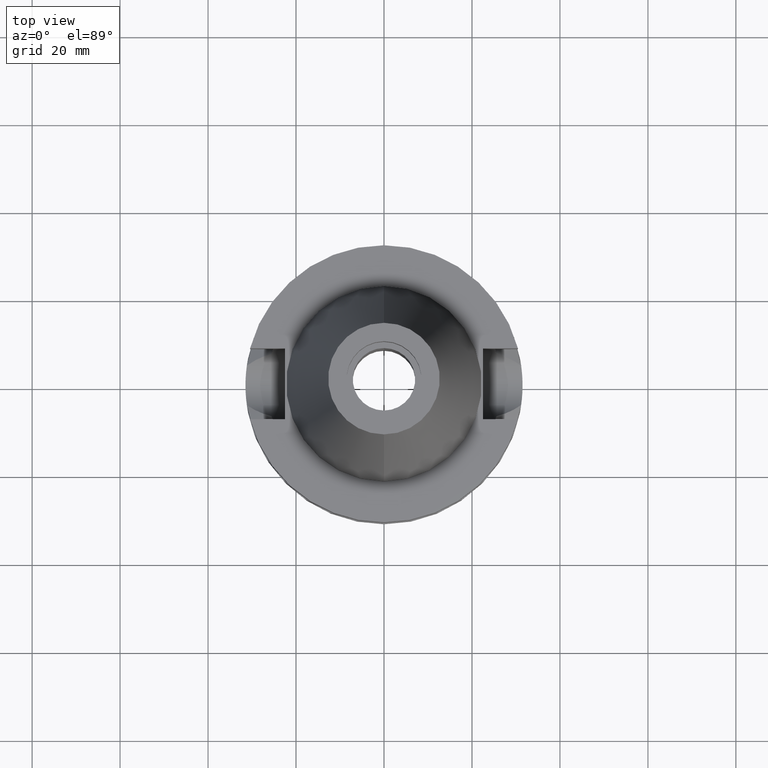
[diagram: clean part render]
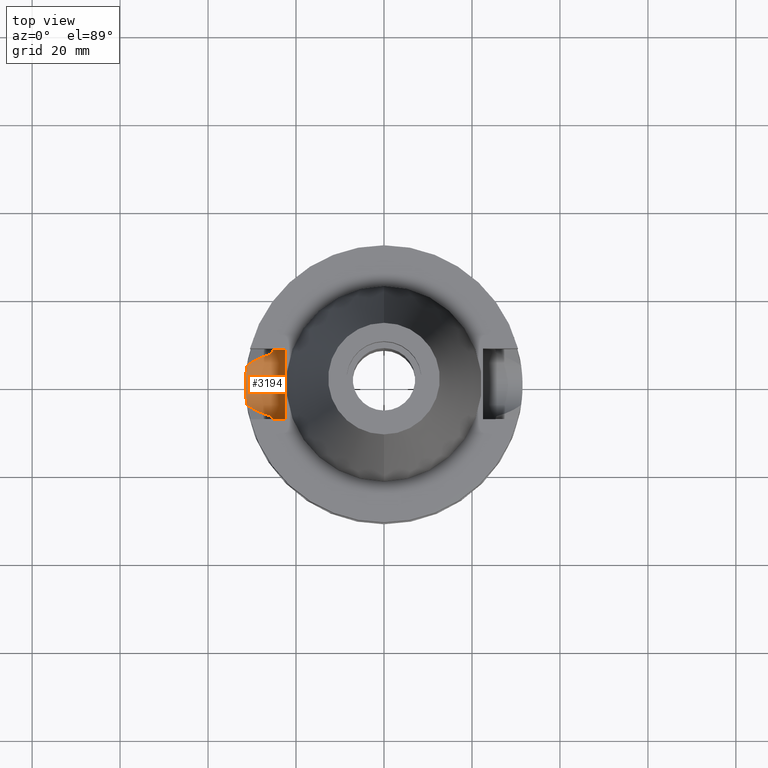
[diagram: same view with one face highlighted and labeled with its STEP entity id]
A machine part, top view. The second image highlights one B-rep face of the part: STEP entity #3194.
In plain terms, the highlighted cylindrical surface (edge-blend (fillet) strip) has radius 8.05 mm, axis along (-1, 0, 0).
Its self-contained STEP definition (entity closure, byte-faithful):
#177=CARTESIAN_POINT('',(-2.25E1,1.807578675541E-14,-1.495E1));
#178=DIRECTION('',(1.E0,0.E0,0.E0));
#179=DIRECTION('',(0.E0,-1.E0,1.919789379228E-14));
#180=AXIS2_PLACEMENT_3D('',#177,#178,#179);
#185=CARTESIAN_POINT('',(-2.25E1,1.807578675541E-14,-1.495E1));
#186=DIRECTION('',(1.E0,0.E0,0.E0));
#187=DIRECTION('',(0.E0,0.E0,-1.E0));
#188=AXIS2_PLACEMENT_3D('',#185,#186,#187);
#241=CARTESIAN_POINT('',(-2.553175183775E1,-7.097862220093E0,
-1.874774300139E1));
#242=CARTESIAN_POINT('',(-2.547268458767E1,-7.310333288722E0,
-1.835064125692E1));
#243=CARTESIAN_POINT('',(-2.536978932799E1,-7.660659993562E0,
-1.753821801328E1));
#244=CARTESIAN_POINT('',(-2.527039941148E1,-7.979415271044E0,
-1.625525072307E1));
#245=CARTESIAN_POINT('',(-2.524772266958E1,-8.05E0,-1.538871362011E1));
#246=CARTESIAN_POINT('',(-2.524772266958E1,-8.05E0,-1.495E1));
#361=CARTESIAN_POINT('',(-2.524772266958E1,8.05E0,-1.495E1));
#362=CARTESIAN_POINT('',(-2.524772266958E1,8.05E0,-1.538877714198E1));
#363=CARTESIAN_POINT('',(-2.527040623778E1,7.979394001993E0,-1.625539825028E1));
#364=CARTESIAN_POINT('',(-2.536980332822E1,7.660613844235E0,-1.753834283836E1));
#365=CARTESIAN_POINT('',(-2.547269200039E1,7.310306624394E0,-1.835069109171E1));
#366=CARTESIAN_POINT('',(-2.553175183775E1,7.097862220093E0,-1.874774300139E1));
#444=CARTESIAN_POINT('',(-3.117899877609E1,4.485536235554E0,-2.163449434733E1));
#445=CARTESIAN_POINT('',(-3.092699572936E1,4.676723045763E0,-2.150620111820E1));
#446=CARTESIAN_POINT('',(-3.037704794003E1,5.058447514772E0,-2.122611318917E1));
#447=CARTESIAN_POINT('',(-2.941603995076E1,5.613847051818E0,-2.073612037933E1));
#448=CARTESIAN_POINT('',(-2.830215788924E1,6.147747117254E0,-2.016735905456E1));
#449=CARTESIAN_POINT('',(-2.702522019392E1,6.649226031568E0,-1.951411904282E1));
#450=CARTESIAN_POINT('',(-2.604943356764E1,6.955560383382E0,-1.901370065842E1));
#451=CARTESIAN_POINT('',(-2.553175183775E1,7.097862220093E0,-1.874774300139E1));
#456=DIRECTION('',(1.E0,1.551559937893E-14,-3.620306521750E-14));
#457=VECTOR('',#456,2.747722669580E0);
#458=CARTESIAN_POINT('',(-2.524772266958E1,8.05E0,-1.495E1));
#459=LINE('',#458,#457);
#463=DIRECTION('',(-1.E0,1.616208268639E-14,-1.034373291929E-14));
#464=VECTOR('',#463,2.747722669580E0);
#465=CARTESIAN_POINT('',(-2.25E1,-8.05E0,-1.495E1));
#466=LINE('',#465,#464);
#470=CARTESIAN_POINT('',(-3.117899877609E1,-4.485536235554E0,
-2.163449434733E1));
#471=CARTESIAN_POINT('',(-3.081769863940E1,-4.759643320996E0,
-2.145055862979E1));
#472=CARTESIAN_POINT('',(-3.002825092628E1,-5.292401626056E0,
-2.104847164175E1));
#473=CARTESIAN_POINT('',(-2.847539734479E1,-6.083327965120E0,
-2.025600677364E1));
#474=CARTESIAN_POINT('',(-2.704755671413E1,-6.642747451730E0,
-1.952560059844E1));
#475=CARTESIAN_POINT('',(-2.603745654607E1,-6.958852661376E0,
-1.900754749440E1));
#476=CARTESIAN_POINT('',(-2.553175183775E1,-7.097862220093E0,
-1.874774300139E1));
#608=CARTESIAN_POINT('',(-3.117899877609E1,4.485536235554E0,-2.163449434733E1));
#609=CARTESIAN_POINT('',(-3.124423357807E1,4.032088597559E0,-2.193877402886E1));
#610=CARTESIAN_POINT('',(-3.135971202356E1,3.088611271780E0,-2.243951042619E1));
#611=CARTESIAN_POINT('',(-3.147335039534E1,1.577609785909E0,-2.289666088953E1));
#612=CARTESIAN_POINT('',(-3.151358178442E1,-1.104147911916E-2,
-2.305267738941E1));
#613=CARTESIAN_POINT('',(-3.147231200138E1,-1.596340580352E0,
-2.289259003373E1));
#614=CARTESIAN_POINT('',(-3.135844480018E1,-3.099975252074E0,
-2.243419198236E1));
#615=CARTESIAN_POINT('',(-3.124366543948E1,-4.036037733524E0,
-2.193612401652E1));
#616=CARTESIAN_POINT('',(-3.117899877609E1,-4.485536235554E0,
-2.163449434733E1));
#2726=VERTEX_POINT('',#470);
#2727=VERTEX_POINT('',#476);
#2730=VERTEX_POINT('',#444);
#2731=VERTEX_POINT('',#451);
#2734=VERTEX_POINT('',#361);
#2735=CARTESIAN_POINT('',(-2.25E1,8.05E0,-1.495E1));
#2736=VERTEX_POINT('',#2735);
#2737=CARTESIAN_POINT('',(-2.25E1,1.856870709207E-14,-2.3E1));
#2738=VERTEX_POINT('',#2737);
#2739=CARTESIAN_POINT('',(-2.25E1,-8.05E0,-1.495E1));
#2740=VERTEX_POINT('',#2739);
#2741=CARTESIAN_POINT('',(-2.524772266958E1,-8.05E0,-1.495E1));
#2742=VERTEX_POINT('',#2741);
#3175=CARTESIAN_POINT('',(-2.25E1,1.807578675541E-14,-1.495E1));
#3176=DIRECTION('',(-1.E0,0.E0,0.E0));
#3177=DIRECTION('',(0.E0,0.E0,-1.E0));
#3178=AXIS2_PLACEMENT_3D('',#3175,#3176,#3177);
#3179=CYLINDRICAL_SURFACE('',#3178,8.05E0);
#3181=ORIENTED_EDGE('',*,*,#3180,.F.);
#3183=ORIENTED_EDGE('',*,*,#3182,.F.);
#3185=ORIENTED_EDGE('',*,*,#3184,.T.);
#3186=ORIENTED_EDGE('',*,*,#3112,.F.);
#3187=ORIENTED_EDGE('',*,*,#3140,.T.);
#3188=ORIENTED_EDGE('',*,*,#2975,.F.);
#3189=ORIENTED_EDGE('',*,*,#2973,.F.);
#3190=ORIENTED_EDGE('',*,*,#2989,.T.);
#3191=ORIENTED_EDGE('',*,*,#3018,.F.);
#3192=EDGE_LOOP('',(#3181,#3183,#3185,#3186,#3187,#3188,#3189,#3190,#3191));
#3193=FACE_OUTER_BOUND('',#3192,.F.);
#181=CIRCLE('',#180,8.05E0);
#189=CIRCLE('',#188,8.05E0);
#247=B_SPLINE_CURVE_WITH_KNOTS('',3,(#241,#242,#243,#244,#245,#246),
.UNSPECIFIED.,.F.,.F.,(4,1,1,4),(0.E0,3.333333333333E-1,6.666666666667E-1,1.E0),
.UNSPECIFIED.);
#367=B_SPLINE_CURVE_WITH_KNOTS('',3,(#361,#362,#363,#364,#365,#366),
.UNSPECIFIED.,.F.,.F.,(4,1,1,4),(0.E0,3.333333333333E-1,6.666666666667E-1,1.E0),
.UNSPECIFIED.);
#452=B_SPLINE_CURVE_WITH_KNOTS('',3,(#444,#445,#446,#447,#448,#449,#450,#451),
.UNSPECIFIED.,.F.,.F.,(4,1,1,1,1,4),(0.E0,2.E-1,4.E-1,6.E-1,8.E-1,1.E0),
.UNSPECIFIED.);
#477=B_SPLINE_CURVE_WITH_KNOTS('',3,(#470,#471,#472,#473,#474,#475,#476),
.UNSPECIFIED.,.F.,.F.,(4,1,1,1,4),(0.E0,2.5E-1,5.E-1,7.5E-1,1.E0),
.UNSPECIFIED.);
#617=B_SPLINE_CURVE_WITH_KNOTS('',3,(#608,#609,#610,#611,#612,#613,#614,#615,
#616),.UNSPECIFIED.,.F.,.F.,(4,1,1,1,1,1,4),(0.E0,1.666666666667E-1,
3.333333333333E-1,5.E-1,6.666666666667E-1,8.333333333333E-1,1.E0),
.UNSPECIFIED.);
#2973=EDGE_CURVE('',#2740,#2738,#181,.T.);
#2975=EDGE_CURVE('',#2738,#2736,#189,.T.);
#2989=EDGE_CURVE('',#2740,#2742,#466,.T.);
#3018=EDGE_CURVE('',#2727,#2742,#247,.T.);
#3112=EDGE_CURVE('',#2734,#2731,#367,.T.);
#3140=EDGE_CURVE('',#2734,#2736,#459,.T.);
#3180=EDGE_CURVE('',#2726,#2727,#477,.T.);
#3182=EDGE_CURVE('',#2730,#2726,#617,.T.);
#3184=EDGE_CURVE('',#2730,#2731,#452,.T.);
#3194=ADVANCED_FACE('',(#3193),#3179,.F.);